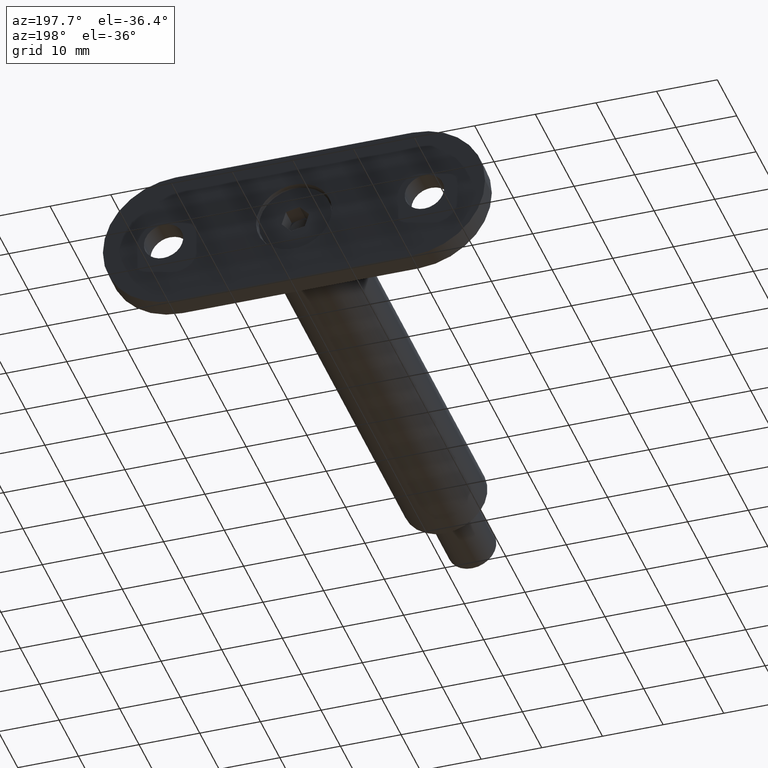
[diagram: clean part render]
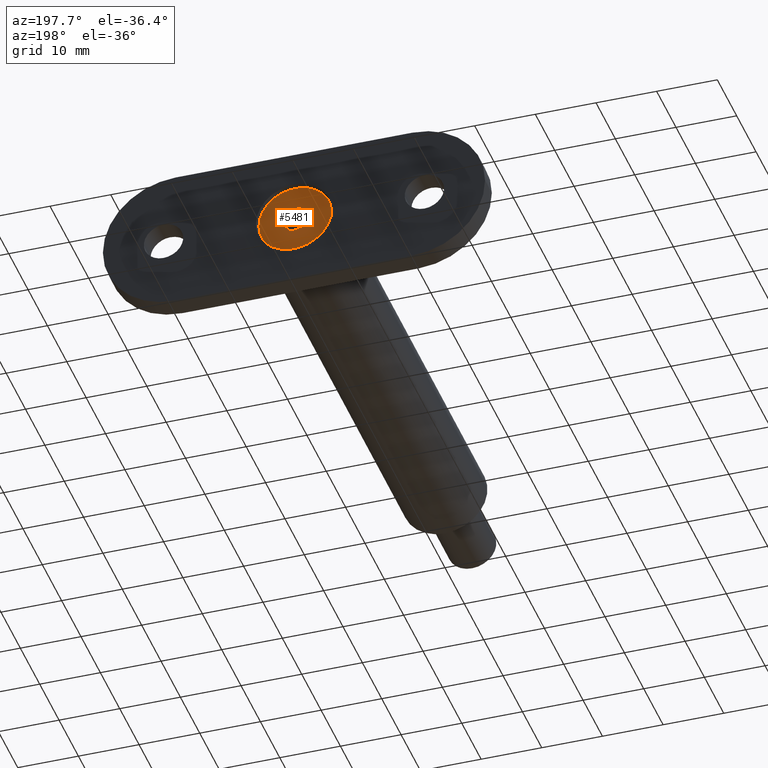
[diagram: same view with one face highlighted and labeled with its STEP entity id]
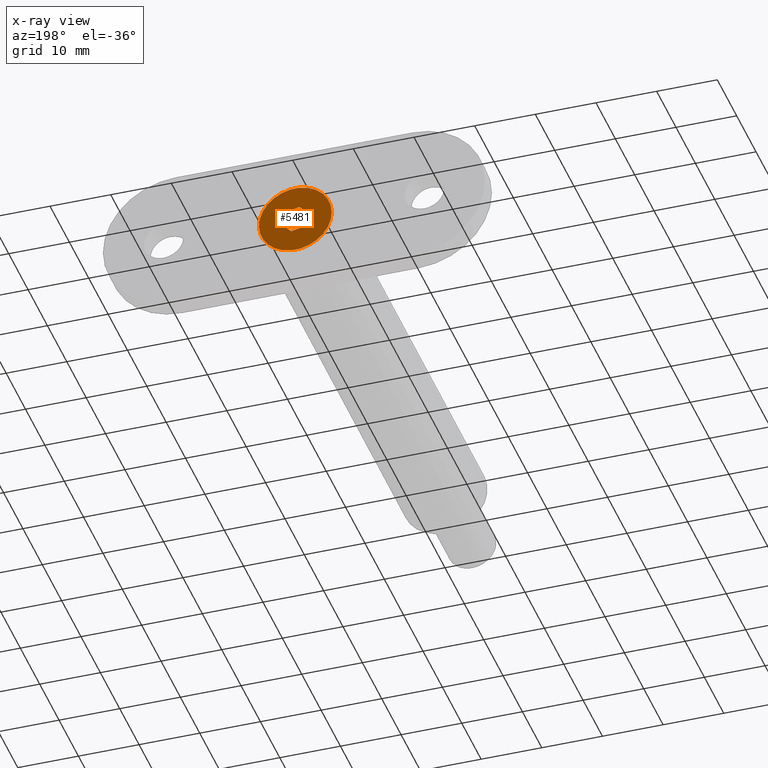
[diagram: x-ray of the same camera — body ghosted, the highlighted face saturated]
A machine part, auxiliary view. The second image highlights one B-rep face of the part: STEP entity #5481.
The next image is the same camera in x-ray: the body ghosted, the highlighted face saturated — about 0% of this face is hidden behind the body in this view.
In plain terms, the highlighted planar face has unit normal (-0, 1, -0).
Its self-contained STEP definition (entity closure, byte-faithful):
#280 = CARTESIAN_POINT ( 'NONE',  ( 2.309401076758502480, 5.022240126475751519E-17, 0.000000000000000000 ) ) ;
#400 = FACE_BOUND ( 'NONE', #12434, .T. ) ;
#471 = ORIENTED_EDGE ( 'NONE', *, *, #775, .F. ) ;
#623 = LINE ( 'NONE', #7266, #8855 ) ;
#663 = VERTEX_POINT ( 'NONE', #12477 ) ;
#775 = EDGE_CURVE ( 'NONE', #3358, #663, #623, .T. ) ;
#818 = CARTESIAN_POINT ( 'NONE',  ( -1.154700538379255015, -2.000000000000000000, 0.000000000000000000 ) ) ;
#1432 = FACE_OUTER_BOUND ( 'NONE', #11157, .T. ) ;
#1451 = VECTOR ( 'NONE', #12152, 1000.000000000000114 ) ;
#1539 = VECTOR ( 'NONE', #1632, 1000.000000000000000 ) ;
#1632 = DIRECTION ( 'NONE',  ( -1.000000000000000000, 0.000000000000000000, 0.000000000000000000 ) ) ;
#1688 = EDGE_CURVE ( 'NONE', #3352, #3539, #13552, .T. ) ;
#1736 = ORIENTED_EDGE ( 'NONE', *, *, #6768, .F. ) ;
#1902 = DIRECTION ( 'NONE',  ( -0.4999999999999997780, 0.8660254037844388186, 0.000000000000000000 ) ) ;
#1925 = CARTESIAN_POINT ( 'NONE',  ( 0.000000000000000000, 1.799711739194228910E-31, -1.469576158976823750E-15 ) ) ;
#2593 = CARTESIAN_POINT ( 'NONE',  ( -1.154700538379252350, 1.999999999999999556, 0.000000000000000000 ) ) ;
#2763 = DIRECTION ( 'NONE',  ( -0.000000000000000000, 1.224646799147353207E-16, -1.000000000000000000 ) ) ;
#3237 = CARTESIAN_POINT ( 'NONE',  ( 0.000000000000000000, 6.000000000000000000, -7.347880794884117764E-16 ) ) ;
#3352 = VERTEX_POINT ( 'NONE', #4079 ) ;
#3358 = VERTEX_POINT ( 'NONE', #818 ) ;
#3539 = VERTEX_POINT ( 'NONE', #9279 ) ;
#3603 = VERTEX_POINT ( 'NONE', #3237 ) ;
#3659 = DIRECTION ( 'NONE',  ( 1.000000000000000000, -1.877893248421448296E-16, 0.000000000000000000 ) ) ;
#3874 = ORIENTED_EDGE ( 'NONE', *, *, #1688, .F. ) ;
#4079 = CARTESIAN_POINT ( 'NONE',  ( -1.154700538379252350, 1.999999999999999556, 0.000000000000000000 ) ) ;
#4613 = EDGE_CURVE ( 'NONE', #3539, #7752, #7974, .T. ) ;
#4666 = EDGE_CURVE ( 'NONE', #3603, #3603, #11159, .T. ) ;
#5101 = DIRECTION ( 'NONE',  ( -0.000000000000000000, 1.224646799147353207E-16, -1.000000000000000000 ) ) ;
#5304 = CARTESIAN_POINT ( 'NONE',  ( 1.154700538379250574, -2.000000000000000000, -0.000000000000000000 ) ) ;
#5481 = ADVANCED_FACE ( 'NONE', ( #400, #1432 ), #8203, .T. ) ;
#5913 = VERTEX_POINT ( 'NONE', #5304 ) ;
#6046 = CARTESIAN_POINT ( 'NONE',  ( 1.154700538379250574, -2.000000000000000000, -0.000000000000000000 ) ) ;
#6050 = AXIS2_PLACEMENT_3D ( 'NONE', #8021, #2763, #10258 ) ;
#6180 = VECTOR ( 'NONE', #3659, 1000.000000000000000 ) ;
#6639 = ORIENTED_EDGE ( 'NONE', *, *, #4666, .T. ) ;
#6768 = EDGE_CURVE ( 'NONE', #7752, #5913, #11825, .T. ) ;
#6780 = ORIENTED_EDGE ( 'NONE', *, *, #11319, .F. ) ;
#7183 = CARTESIAN_POINT ( 'NONE',  ( 2.309401076758502480, 5.022240126475751519E-17, 0.000000000000000000 ) ) ;
#7266 = CARTESIAN_POINT ( 'NONE',  ( -1.154700538379255015, -2.000000000000000000, 0.000000000000000000 ) ) ;
#7315 = AXIS2_PLACEMENT_3D ( 'NONE', #1925, #5101, #9314 ) ;
#7752 = VERTEX_POINT ( 'NONE', #7183 ) ;
#7974 = LINE ( 'NONE', #12612, #9112 ) ;
#8021 = CARTESIAN_POINT ( 'NONE',  ( 0.000000000000000000, 6.000000000000000000, 0.000000000000000000 ) ) ;
#8203 = PLANE ( 'NONE',  #6050 ) ;
#8746 = LINE ( 'NONE', #6046, #1539 ) ;
#8855 = VECTOR ( 'NONE', #1902, 1000.000000000000114 ) ;
#9112 = VECTOR ( 'NONE', #10548, 1000.000000000000000 ) ;
#9279 = CARTESIAN_POINT ( 'NONE',  ( 1.154700538379251684, 1.999999999999999112, 0.000000000000000000 ) ) ;
#9314 = DIRECTION ( 'NONE',  ( 0.000000000000000000, 1.000000000000000000, 1.224646799147353207E-16 ) ) ;
#9637 = VECTOR ( 'NONE', #11035, 1000.000000000000000 ) ;
#10258 = DIRECTION ( 'NONE',  ( 0.000000000000000000, 1.000000000000000000, 1.224646799147353207E-16 ) ) ;
#10264 = EDGE_CURVE ( 'NONE', #5913, #3358, #8746, .T. ) ;
#10548 = DIRECTION ( 'NONE',  ( 0.4999999999999998890, -0.8660254037844387076, 0.000000000000000000 ) ) ;
#11035 = DIRECTION ( 'NONE',  ( -0.5000000000000001110, -0.8660254037844385966, -0.000000000000000000 ) ) ;
#11064 = CARTESIAN_POINT ( 'NONE',  ( -2.309401076758504701, -1.752598683377171676E-15, 0.000000000000000000 ) ) ;
#11157 = EDGE_LOOP ( 'NONE', ( #6639 ) ) ;
#11159 = CIRCLE ( 'NONE', #7315, 6.000000000000000000 ) ;
#11319 = EDGE_CURVE ( 'NONE', #663, #3352, #13057, .T. ) ;
#11617 = ORIENTED_EDGE ( 'NONE', *, *, #4613, .F. ) ;
#11825 = LINE ( 'NONE', #280, #9637 ) ;
#12152 = DIRECTION ( 'NONE',  ( 0.5000000000000001110, 0.8660254037844385966, 0.000000000000000000 ) ) ;
#12434 = EDGE_LOOP ( 'NONE', ( #471, #13646, #1736, #11617, #3874, #6780 ) ) ;
#12477 = CARTESIAN_POINT ( 'NONE',  ( -2.309401076758504701, -1.734723475976807094E-15, -7.347880794884121708E-16 ) ) ;
#12612 = CARTESIAN_POINT ( 'NONE',  ( 1.154700538379251684, 1.999999999999999112, 0.000000000000000000 ) ) ;
#13057 = LINE ( 'NONE', #11064, #1451 ) ;
#13552 = LINE ( 'NONE', #2593, #6180 ) ;
#13646 = ORIENTED_EDGE ( 'NONE', *, *, #10264, .F. ) ;